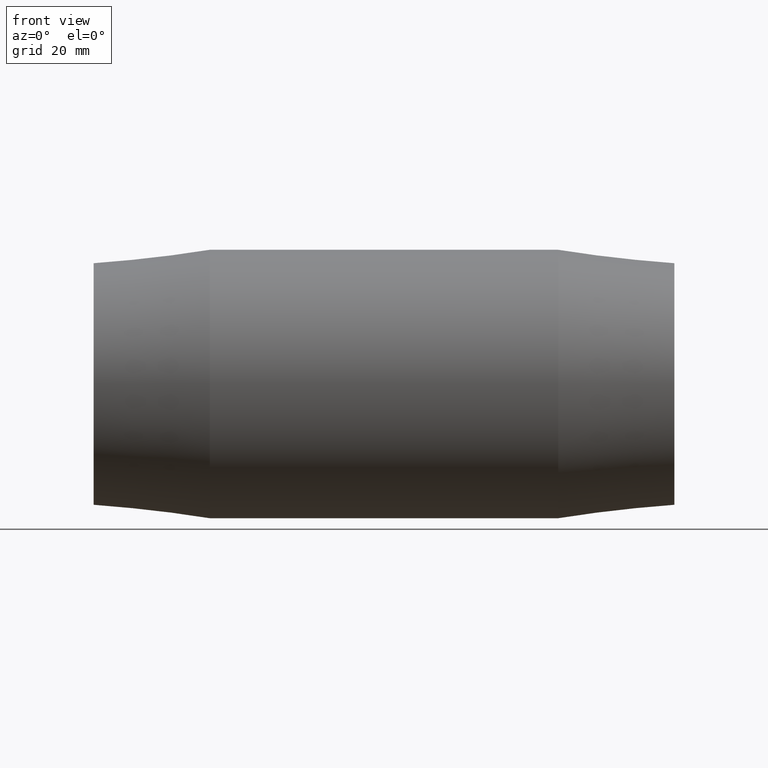
[diagram: clean part render]
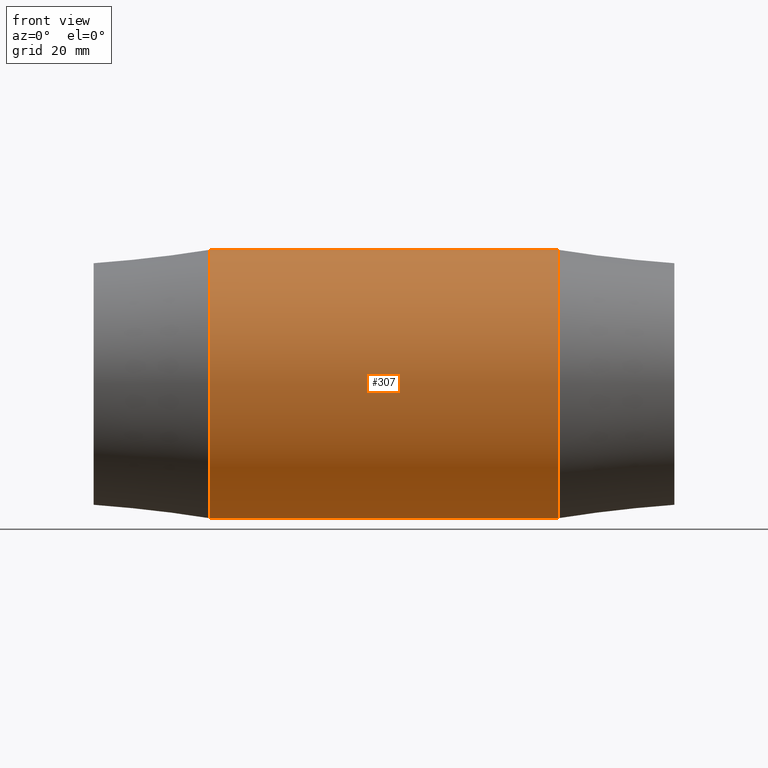
[diagram: same view with one face highlighted and labeled with its STEP entity id]
A machine part, front view. The second image highlights one B-rep face of the part: STEP entity #307.
In plain terms, the highlighted cylindrical surface (bore or boss wall) has radius 28 mm, axis along (1, 0, 0).
Its self-contained STEP definition (entity closure, byte-faithful):
#33=FACE_BOUND('',#112,.T.);
#55=CYLINDRICAL_SURFACE('',#347,28.);
#73=FACE_OUTER_BOUND('',#111,.T.);
#111=EDGE_LOOP('',(#249));
#112=EDGE_LOOP('',(#250));
#155=CIRCLE('',#348,28.);
#156=CIRCLE('',#349,28.);
#183=VERTEX_POINT('',#593);
#184=VERTEX_POINT('',#595);
#211=EDGE_CURVE('',#183,#183,#155,.T.);
#212=EDGE_CURVE('',#184,#184,#156,.T.);
#249=ORIENTED_EDGE('',*,*,#211,.F.);
#250=ORIENTED_EDGE('',*,*,#212,.T.);
#307=ADVANCED_FACE('',(#73,#33),#55,.T.);
#347=AXIS2_PLACEMENT_3D('',#592,#425,#426);
#348=AXIS2_PLACEMENT_3D('',#594,#427,#428);
#349=AXIS2_PLACEMENT_3D('',#596,#429,#430);
#425=DIRECTION('center_axis',(1.,0.,0.));
#426=DIRECTION('ref_axis',(0.,1.,0.));
#427=DIRECTION('center_axis',(1.,0.,0.));
#428=DIRECTION('ref_axis',(0.,0.,-1.));
#429=DIRECTION('center_axis',(1.,0.,0.));
#430=DIRECTION('ref_axis',(0.,0.,-1.));
#592=CARTESIAN_POINT('Origin',(0.,0.,0.));
#593=CARTESIAN_POINT('',(36.3,28.,0.));
#594=CARTESIAN_POINT('Origin',(36.3,0.,0.));
#595=CARTESIAN_POINT('',(-36.3,28.,0.));
#596=CARTESIAN_POINT('Origin',(-36.3,0.,0.));